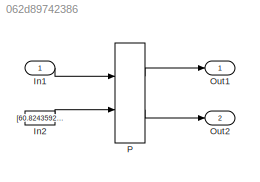
MODEL slx_062d89742386
KIND model
CONFIG AbsTol = auto
CONFIG EnableMultiTasking = off
CONFIG FixedStep = auto
CONFIG MaxStep = auto
CONFIG MinStep = auto
CONFIG RelTol = 1e-3
CONFIG SampleTimeConstraint = Unconstrained
CONFIG Solver = FixedStepDiscrete
CONFIG SolverName = FixedStepDiscrete
CONFIG StartTime = 0.0
CONFIG StopTime = 10.0
BLOCK [Inport] In1
  IconDisplay = Port number
  OutDataTypeStr = double
  PortDimensions = 3
BLOCK [Constant] In2
  Value = [60.824359239942 62.324359239942 63.824359239942]
BLOCK [Outport] Out1
  IconDisplay = Port number
BLOCK [Outport] Out2
  IconDisplay = Port number
  Port = 2
BLOCK [PreLookup] P
  BeginIndexSearchUsingPreviousIndexResult = on
  BreakpointDataTypeStr = int32
  BreakpointsData = [10:10:110]
  BreakpointsDataSource = Input port
  FractionDataTypeStr = double
  IndexDataTypeStr = int8
  IndexSearchMethod = Linear search
  InputPortMap = u0,p1
  Ports = [2, 2]
  RndMeth = Round
LINE In1:1 -> P:1
LINE In2:1 -> P:2
LINE P:1 -> Out1:1
LINE P:2 -> Out2:1
